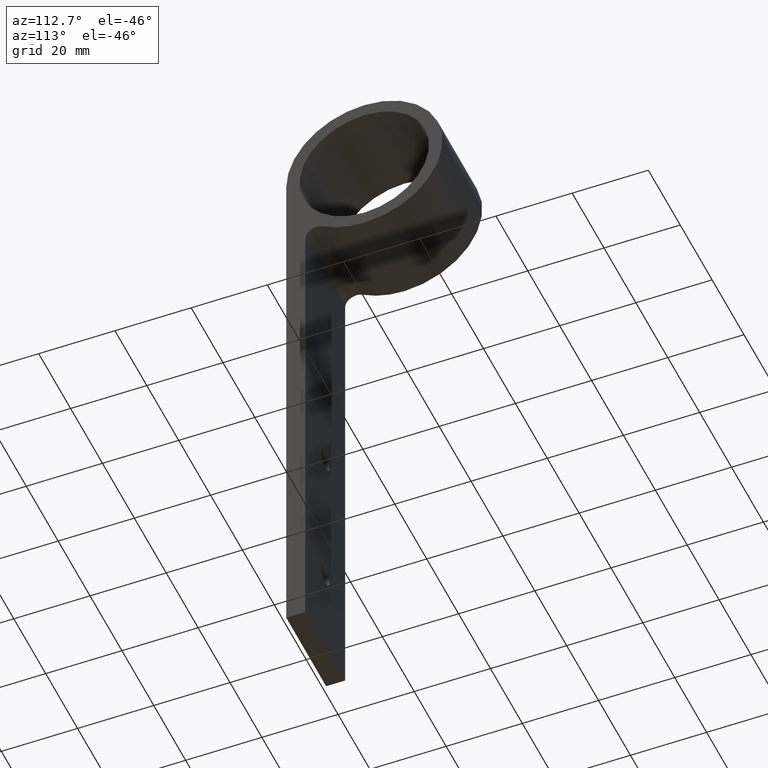
[diagram: clean part render]
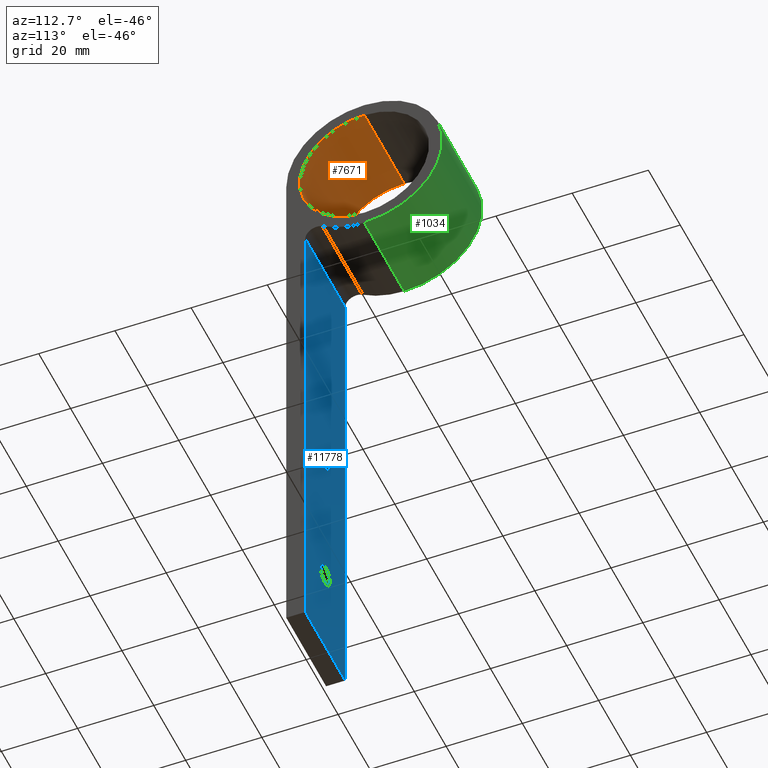
[diagram: same view with three faces highlighted in distinct colors, each labeled with its STEP entity id]
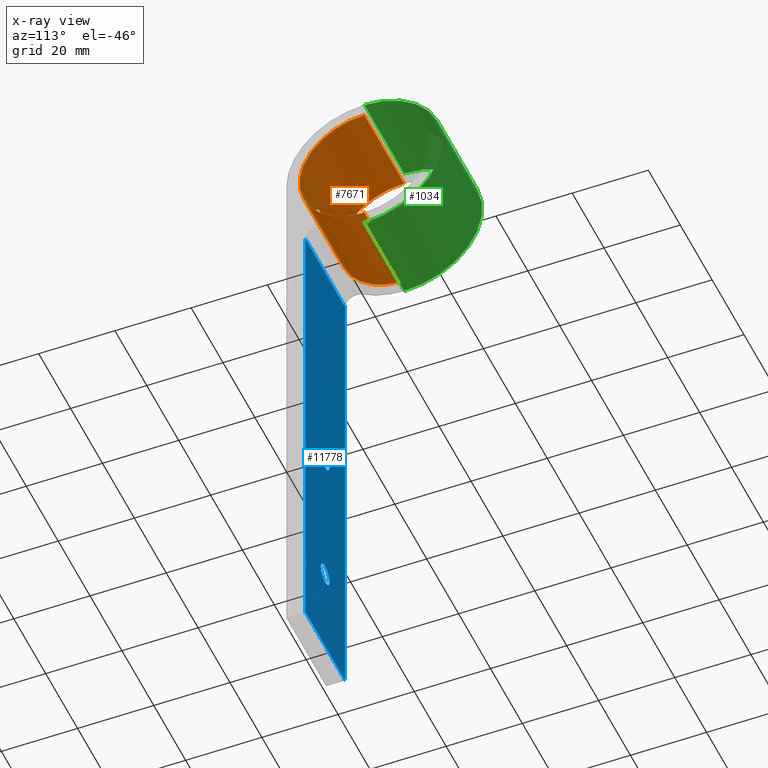
[diagram: x-ray of the same camera — body ghosted, the three highlighted faces saturated]
A machine part, auxiliary view with three faces highlighted in distinct colors.
The next image is the same camera in x-ray (body ghosted, the three faces saturated) — at least one of them is partly hidden behind the body in this view.
Their STEP definitions:

[orange] entity #7671 — the highlighted cylindrical surface (partial cylindrical patch) has radius 17 mm, axis along (-1, -0, -0).
#60 = EDGE_CURVE ( 'NONE', #8145, #12774, #2739, .T. ) ;
#227 = CARTESIAN_POINT ( 'NONE',  ( 1.292585439704656800, 3.581853561563883100, -1.677527179448687000 ) ) ;
#262 = CARTESIAN_POINT ( 'NONE',  ( -1.388464737928182500, 3.573436707370332600, -1.581422137892240400 ) ) ;
#386 = CARTESIAN_POINT ( 'NONE',  ( -1.835140735192840800, 3.531001461322652400, -1.056917894825852400 ) ) ;
#437 = DIRECTION ( 'NONE',  ( 1.000000000000000000, 0.0000000000000000000, 0.0000000000000000000 ) ) ;
#576 = CARTESIAN_POINT ( 'NONE',  ( -1.887636051577382700, 3.525005667795949400, 0.9304763180345871900 ) ) ;
#1111 = CARTESIAN_POINT ( 'NONE',  ( 2.086562036054864200, 3.501675275820900000, -0.2738667170391442800 ) ) ;
#1154 = CARTESIAN_POINT ( 'NONE',  ( 0.5506840071780398900, 3.623106845484088900, 2.044889796749440600 ) ) ;
#1166 = VERTEX_POINT ( 'NONE', #11349 ) ;
#1236 = CARTESIAN_POINT ( 'NONE',  ( 1.671126338246743400, 3.547804512478232000, -1.279124811796311000 ) ) ;
#1592 = CARTESIAN_POINT ( 'NONE',  ( 12.50000000000000000, 20.50000000000000000, 0.0000000000000000000 ) ) ;
#1599 = DIRECTION ( 'NONE',  ( 0.0000000000000000000, 0.0000000000000000000, -1.000000000000000000 ) ) ;
#1612 = CARTESIAN_POINT ( 'NONE',  ( -1.281165112788328600, 3.582005868734934300, 1.669525685018801600 ) ) ;
#1862 = EDGE_LOOP ( 'NONE', ( #3165, #4734 ) ) ;
#1906 = CARTESIAN_POINT ( 'NONE',  ( 2.571758226451988600E-016, 3.630204506278088800, 2.099999999999998300 ) ) ;
#1988 = EDGE_CURVE ( 'NONE', #12774, #1166, #10235, .T. ) ;
#2127 = CARTESIAN_POINT ( 'NONE',  ( 1.056153587996465900, 3.599061266467410200, 1.835583491746922300 ) ) ;
#2449 = B_SPLINE_CURVE_WITH_KNOTS ( 'NONE', 3,
 ( #3033, #5935, #1154, #2127, #3171, #9188, #12147, #12103, #4208, #10193, #11090, #7232, #8191, #5145, #1111, #6079, #10113, #9101, #4123, #1236, #6177, #227, #8231, #12184, #11193, #3219 ),
 .UNSPECIFIED., .F., .F.,
 ( 4, 2, 2, 2, 2, 2, 2, 2, 2, 2, 2, 2, 4 ),
 ( 0.006571828475875620200, 0.007393110482867787000, 0.008214392489859952100, 0.008625033493356035500, 0.009035674496852119000, 0.009446315500348200600, 0.009856956503844284100, 0.01026759750734036700, 0.01067823851083644900, 0.01108887951433253400, 0.01149952051782861600, 0.01232080252482078300, 0.01314208453181295000 ),
 .UNSPECIFIED. ) ;
#2521 = CARTESIAN_POINT ( 'NONE',  ( -1.669911747788980200, 3.547923696449819500, 1.280662982450457800 ) ) ;
#2563 = CARTESIAN_POINT ( 'NONE',  ( 12.50000000000000000, 20.50000000000000400, -17.00000000000000000 ) ) ;
#2575 = AXIS2_PLACEMENT_3D ( 'NONE', #9454, #437, #9300 ) ;
#2609 = CARTESIAN_POINT ( 'NONE',  ( -0.2764157468130021800, 3.628477410110408900, 2.086254837854884900 ) ) ;
#2739 = LINE ( 'NONE', #4938, #4584 ) ;
#3033 = CARTESIAN_POINT ( 'NONE',  ( 2.571758226451988600E-016, 3.630204506278088800, 2.099999999999998300 ) ) ;
#3165 = ORIENTED_EDGE ( 'NONE', *, *, #9048, .F. ) ;
#3171 = CARTESIAN_POINT ( 'NONE',  ( 1.290223062014691100, 3.582037801974925700, 1.679363138923043700 ) ) ;
#3219 = CARTESIAN_POINT ( 'NONE',  ( -1.288920661660106000E-016, 3.630204506278089700, -2.099999999999998300 ) ) ;
#3254 = VERTEX_POINT ( 'NONE', #1906 ) ;
#3323 = ORIENTED_EDGE ( 'NONE', *, *, #10654, .T. ) ;
#3462 = CARTESIAN_POINT ( 'NONE',  ( -1.992964028051135200, 3.512970585406910700, 0.6760550454896757700 ) ) ;
#3606 = EDGE_CURVE ( 'NONE', #8145, #6884, #4105, .T. ) ;
#3630 = CARTESIAN_POINT ( 'NONE',  ( -1.583035926240891300, 3.556373444854558300, 1.386792208159472800 ) ) ;
#3865 = DIRECTION ( 'NONE',  ( -1.000000000000000000, -0.0000000000000000000, -0.0000000000000000000 ) ) ;
#4095 = ORIENTED_EDGE ( 'NONE', *, *, #1988, .F. ) ;
#4105 = CIRCLE ( 'NONE', #7770, 17.00000000000000000 ) ;
#4123 = CARTESIAN_POINT ( 'NONE',  ( 1.823348185436688000, 3.532122489418227500, -1.050821068117524700 ) ) ;
#4208 = CARTESIAN_POINT ( 'NONE',  ( 1.886447012561549100, 3.525138299874243800, 0.9328776612798781500 ) ) ;
#4230 = FACE_BOUND ( 'NONE', #1862, .T. ) ;
#4244 = CARTESIAN_POINT ( 'NONE',  ( -1.052337786729713000, 3.597797215665412100, -1.822473903856179000 ) ) ;
#4284 = CARTESIAN_POINT ( 'NONE',  ( -0.2754415339899465900, 3.628490212755584500, -2.086356138743989500 ) ) ;
#4477 = CARTESIAN_POINT ( 'NONE',  ( -0.6767192885169987000, 3.617114506524287300, 1.992734033895099400 ) ) ;
#4514 = CARTESIAN_POINT ( 'NONE',  ( -2.086359296382373600, 3.501700522358104400, 0.2756364203450403200 ) ) ;
#4557 = CARTESIAN_POINT ( 'NONE',  ( -0.1371224895085250700, 3.630204506278091400, 2.099999999999999200 ) ) ;
#4584 = VECTOR ( 'NONE', #3865, 1000.000000000000000 ) ;
#4734 = ORIENTED_EDGE ( 'NONE', *, *, #11450, .F. ) ;
#4938 = CARTESIAN_POINT ( 'NONE',  ( 12.50000000000000000, 20.50000000000000000, 17.00000000000000000 ) ) ;
#5145 = CARTESIAN_POINT ( 'NONE',  ( 2.100099172365800500, 3.499987749299107200, -0.1373417007826688600 ) ) ;
#5545 = CARTESIAN_POINT ( 'NONE',  ( 12.50000000000000000, 20.50000000000000000, 0.0000000000000000000 ) ) ;
#5578 = DIRECTION ( 'NONE',  ( 0.0000000000000000000, 0.0000000000000000000, 1.000000000000000000 ) ) ;
#5793 = DIRECTION ( 'NONE',  ( -1.000000000000000000, -0.0000000000000000000, -0.0000000000000000000 ) ) ;
#5935 = CARTESIAN_POINT ( 'NONE',  ( 0.2741793613165029500, 3.630204506278091900, 2.099999999999998300 ) ) ;
#6079 = CARTESIAN_POINT ( 'NONE',  ( 2.033341558712305400, 3.508126054118702700, -0.5424630997778831000 ) ) ;
#6177 = CARTESIAN_POINT ( 'NONE',  ( 1.582617475947107000, 3.556405236091980900, -1.387097892727182600 ) ) ;
#6253 = CARTESIAN_POINT ( 'NONE',  ( -0.6774923513383321900, 3.617083508942036100, -1.992473001880804300 ) ) ;
#6293 = CARTESIAN_POINT ( 'NONE',  ( -1.288920661660106000E-016, 3.630204506278089700, -2.099999999999998300 ) ) ;
#6342 = CARTESIAN_POINT ( 'NONE',  ( -0.5440391609568068200, 3.621968329479530600, -2.032921879381221200 ) ) ;
#6420 = CARTESIAN_POINT ( 'NONE',  ( -1.280528881285621300, 3.582056911042781300, -1.670051415917895400 ) ) ;
#6622 = CARTESIAN_POINT ( 'NONE',  ( -1.387120695110205300, 3.573553771707912700, 1.582748100481615500 ) ) ;
#6884 = VERTEX_POINT ( 'NONE', #2563 ) ;
#7232 = CARTESIAN_POINT ( 'NONE',  ( 2.086161878843087800, 3.501724677108447800, 0.2768808507634298300 ) ) ;
#7392 = CARTESIAN_POINT ( 'NONE',  ( -1.678728219155094100, 3.547980335148853900, -1.291043296313081100 ) ) ;
#7550 = CARTESIAN_POINT ( 'NONE',  ( -1.821904488581840100, 3.532277061388037400, 1.053264902343135100 ) ) ;
#7584 = DIRECTION ( 'NONE',  ( 1.000000000000000000, 0.0000000000000000000, 0.0000000000000000000 ) ) ;
#7671 = ADVANCED_FACE ( 'NONE', ( #4230, #8578 ), #12188, .F. ) ;
#7770 = AXIS2_PLACEMENT_3D ( 'NONE', #5545, #7584, #1599 ) ;
#7815 = B_SPLINE_CURVE_WITH_KNOTS ( 'NONE', 3,
 ( #6293, #12305, #4284, #6342, #6253, #11356, #4244, #6420, #262, #7392, #386, #9512, #9600, #12467, #4514, #12430, #3462, #576, #7550, #2521, #3630, #6622, #1612, #10596, #11523, #4477, #10563, #2609, #4557, #12589 ),
 .UNSPECIFIED., .F., .F.,
 ( 4, 2, 2, 2, 2, 2, 2, 2, 2, 2, 2, 2, 2, 2, 4 ),
 ( 1.425211723115268800E-019, 0.0004107392797422264300, 0.0008214785594844526300, 0.001232217839226679100, 0.001642957118968905300, 0.002464435678453357800, 0.003285914237937810100, 0.003696653517680036300, 0.004107392797422262400, 0.004518132077164488600, 0.004928871356906715600, 0.005339610636648941700, 0.005750349916391167900, 0.006161089196133394000, 0.006571828475875620200 ),
 .UNSPECIFIED. ) ;
#8145 = VERTEX_POINT ( 'NONE', #9017 ) ;
#8191 = CARTESIAN_POINT ( 'NONE',  ( 2.099899744605787900, 3.500012384486737000, 0.1403578966426291800 ) ) ;
#8231 = CARTESIAN_POINT ( 'NONE',  ( 1.058654519263458400, 3.598901389102847800, -1.834129459362758200 ) ) ;
#8381 = ORIENTED_EDGE ( 'NONE', *, *, #60, .F. ) ;
#8393 = EDGE_LOOP ( 'NONE', ( #8769, #3323, #4095, #8381 ) ) ;
#8578 = FACE_OUTER_BOUND ( 'NONE', #8393, .T. ) ;
#8769 = ORIENTED_EDGE ( 'NONE', *, *, #3606, .T. ) ;
#9017 = CARTESIAN_POINT ( 'NONE',  ( 12.50000000000000000, 20.50000000000000000, 17.00000000000000000 ) ) ;
#9048 = EDGE_CURVE ( 'NONE', #10196, #3254, #7815, .T. ) ;
#9101 = CARTESIAN_POINT ( 'NONE',  ( 1.887759289928912600, 3.524991825669267200, -0.9302137007967088400 ) ) ;
#9188 = CARTESIAN_POINT ( 'NONE',  ( 1.580769184118613100, 3.556578752817606900, 1.389209419804291200 ) ) ;
#9300 = DIRECTION ( 'NONE',  ( 0.0000000000000000000, 0.0000000000000000000, -1.000000000000000000 ) ) ;
#9454 = CARTESIAN_POINT ( 'NONE',  ( -12.50000000000000000, 20.50000000000000000, 0.0000000000000000000 ) ) ;
#9467 = AXIS2_PLACEMENT_3D ( 'NONE', #1592, #10659, #5578 ) ;
#9512 = CARTESIAN_POINT ( 'NONE',  ( -2.044647976664420800, 3.507067491567332300, -0.5515719408103705300 ) ) ;
#9600 = CARTESIAN_POINT ( 'NONE',  ( -2.099899160140454000, 3.500012456687702700, -0.2750024460956742600 ) ) ;
#9805 = LINE ( 'NONE', #10778, #12144 ) ;
#9903 = CARTESIAN_POINT ( 'NONE',  ( -1.288920661660106000E-016, 3.630204506278089700, -2.099999999999998300 ) ) ;
#10113 = CARTESIAN_POINT ( 'NONE',  ( 1.992997497906197500, 3.512966521239129700, -0.6759390795052893100 ) ) ;
#10193 = CARTESIAN_POINT ( 'NONE',  ( 1.992068355104039900, 3.513076095460931000, 0.6786801387328876800 ) ) ;
#10196 = VERTEX_POINT ( 'NONE', #9903 ) ;
#10235 = CIRCLE ( 'NONE', #2575, 17.00000000000000000 ) ;
#10563 = CARTESIAN_POINT ( 'NONE',  ( -0.5457997217820446100, 3.621914617695349800, 2.032478186171192900 ) ) ;
#10596 = CARTESIAN_POINT ( 'NONE',  ( -1.053830932126237100, 3.597701309798144300, 1.821576357350241500 ) ) ;
#10654 = EDGE_CURVE ( 'NONE', #6884, #1166, #9805, .T. ) ;
#10659 = DIRECTION ( 'NONE',  ( -1.000000000000000000, -0.0000000000000000000, -0.0000000000000000000 ) ) ;
#10778 = CARTESIAN_POINT ( 'NONE',  ( 12.50000000000000000, 20.50000000000000400, -17.00000000000000000 ) ) ;
#11090 = CARTESIAN_POINT ( 'NONE',  ( 2.032571799794656600, 3.508218436861709800, 0.5453313386713727300 ) ) ;
#11193 = CARTESIAN_POINT ( 'NONE',  ( 0.2777231473538315800, 3.630204506278090500, -2.099999999999999200 ) ) ;
#11349 = CARTESIAN_POINT ( 'NONE',  ( -12.50000000000000000, 20.50000000000000400, -17.00000000000000000 ) ) ;
#11356 = CARTESIAN_POINT ( 'NONE',  ( -0.9317625166014631400, 3.604969525175207000, -1.886998453100149400 ) ) ;
#11450 = EDGE_CURVE ( 'NONE', #3254, #10196, #2449, .T. ) ;
#11523 = CARTESIAN_POINT ( 'NONE',  ( -0.9309870661877792700, 3.605012266717367600, 1.887379402209809800 ) ) ;
#11783 = CARTESIAN_POINT ( 'NONE',  ( -12.50000000000000000, 20.50000000000000000, 17.00000000000000000 ) ) ;
#12103 = CARTESIAN_POINT ( 'NONE',  ( 1.821872942515406500, 3.532281403634998100, 1.053364151147621300 ) ) ;
#12144 = VECTOR ( 'NONE', #5793, 1000.000000000000000 ) ;
#12147 = CARTESIAN_POINT ( 'NONE',  ( 1.669450014099930200, 3.547970130502387900, 1.281301566382573300 ) ) ;
#12184 = CARTESIAN_POINT ( 'NONE',  ( 0.5536380703599101900, 3.623006785061963600, -2.044080515025624900 ) ) ;
#12188 = CYLINDRICAL_SURFACE ( 'NONE', #9467, 17.00000000000000000 ) ;
#12305 = CARTESIAN_POINT ( 'NONE',  ( -0.1388948065837086500, 3.630204506278089700, -2.099999999999998300 ) ) ;
#12430 = CARTESIAN_POINT ( 'NONE',  ( -2.032672658805467300, 3.508206446762163200, 0.5450801885654020800 ) ) ;
#12467 = CARTESIAN_POINT ( 'NONE',  ( -2.100050207561070500, 3.499993797889925600, 0.1363445369349200500 ) ) ;
#12589 = CARTESIAN_POINT ( 'NONE',  ( 2.571758226451988600E-016, 3.630204506278088800, 2.099999999999998300 ) ) ;
#12774 = VERTEX_POINT ( 'NONE', #11783 ) ;

[blue] entity #11778 — the highlighted planar face has unit normal (0, -1, -0).
#149 = DIRECTION ( 'NONE',  ( 0.0000000000000000000, -1.000000000000000000, -1.333585990310819800E-016 ) ) ;
#151 = VERTEX_POINT ( 'NONE', #3268 ) ;
#170 = CIRCLE ( 'NONE', #6510, 2.750000000000002700 ) ;
#177 = DIRECTION ( 'NONE',  ( 1.000000000000000000, 0.0000000000000000000, 0.0000000000000000000 ) ) ;
#354 = EDGE_CURVE ( 'NONE', #10653, #2700, #6976, .T. ) ;
#371 = FACE_BOUND ( 'NONE', #11146, .T. ) ;
#725 = EDGE_CURVE ( 'NONE', #7938, #11404, #9448, .T. ) ;
#856 = EDGE_CURVE ( 'NONE', #7938, #3028, #9150, .T. ) ;
#925 = ORIENTED_EDGE ( 'NONE', *, *, #7979, .T. ) ;
#971 = CARTESIAN_POINT ( 'NONE',  ( 0.0000000000000000000, 4.999999999999996400, -127.7500000000000000 ) ) ;
#1430 = AXIS2_PLACEMENT_3D ( 'NONE', #4621, #4659, #8602 ) ;
#1637 = VECTOR ( 'NONE', #10753, 1000.000000000000000 ) ;
#2040 = DIRECTION ( 'NONE',  ( 0.0000000000000000000, 0.0000000000000000000, -1.000000000000000000 ) ) ;
#2307 = DIRECTION ( 'NONE',  ( -1.000000000000000000, -0.0000000000000000000, -0.0000000000000000000 ) ) ;
#2700 = VERTEX_POINT ( 'NONE', #5416 ) ;
#2812 = CARTESIAN_POINT ( 'NONE',  ( -4.561809326823892200E-015, 4.999999999999991100, -82.24999999999998600 ) ) ;
#2813 = CARTESIAN_POINT ( 'NONE',  ( -12.50000000000000000, 5.000000000000000000, -150.0000000000000000 ) ) ;
#2922 = DIRECTION ( 'NONE',  ( 0.0000000000000000000, 1.333585990310819800E-016, -1.000000000000000000 ) ) ;
#3028 = VERTEX_POINT ( 'NONE', #11123 ) ;
#3222 = AXIS2_PLACEMENT_3D ( 'NONE', #12385, #12502, #4476 ) ;
#3268 = CARTESIAN_POINT ( 'NONE',  ( -12.50000000000000000, 4.999999999999983100, -19.89974874213237800 ) ) ;
#3552 = ORIENTED_EDGE ( 'NONE', *, *, #856, .T. ) ;
#4167 = CARTESIAN_POINT ( 'NONE',  ( 12.50000000000000000, 4.999999999999983100, -19.89974874213238500 ) ) ;
#4476 = DIRECTION ( 'NONE',  ( 0.0000000000000000000, 0.0000000000000000000, -1.000000000000000000 ) ) ;
#4621 = CARTESIAN_POINT ( 'NONE',  ( 0.0000000000000000000, 4.999999999999996400, -125.0000000000000000 ) ) ;
#4659 = DIRECTION ( 'NONE',  ( 0.0000000000000000000, -1.000000000000000000, -1.333585990310819800E-016 ) ) ;
#4782 = CARTESIAN_POINT ( 'NONE',  ( 0.0000000000000000000, 4.999999999999996400, -125.0000000000000000 ) ) ;
#4832 = VERTEX_POINT ( 'NONE', #2812 ) ;
#4963 = EDGE_CURVE ( 'NONE', #8496, #4832, #170, .T. ) ;
#4986 = CARTESIAN_POINT ( 'NONE',  ( 12.50000000000000000, 5.000000000000000000, -150.0000000000000000 ) ) ;
#5416 = CARTESIAN_POINT ( 'NONE',  ( 3.367778697655213600E-016, 4.999999999999996400, -122.2500000000000000 ) ) ;
#6052 = CARTESIAN_POINT ( 'NONE',  ( 12.50000000000000000, 5.000000000000000000, -150.0000000000000000 ) ) ;
#6063 = DIRECTION ( 'NONE',  ( 0.0000000000000000000, -1.000000000000000000, -1.333585990310819800E-016 ) ) ;
#6142 = CARTESIAN_POINT ( 'NONE',  ( -4.898587196589413800E-015, 4.999999999999991100, -84.99999999999998600 ) ) ;
#6510 = AXIS2_PLACEMENT_3D ( 'NONE', #6142, #149, #2040 ) ;
#6716 = DIRECTION ( 'NONE',  ( 0.0000000000000000000, 0.0000000000000000000, -1.000000000000000000 ) ) ;
#6968 = FACE_BOUND ( 'NONE', #10455, .T. ) ;
#6976 = CIRCLE ( 'NONE', #10286, 2.750000000000002700 ) ;
#7030 = LINE ( 'NONE', #2813, #10602 ) ;
#7938 = VERTEX_POINT ( 'NONE', #4986 ) ;
#7979 = EDGE_CURVE ( 'NONE', #4832, #8496, #9378, .T. ) ;
#8306 = LINE ( 'NONE', #4167, #10451 ) ;
#8358 = FACE_OUTER_BOUND ( 'NONE', #12505, .T. ) ;
#8496 = VERTEX_POINT ( 'NONE', #10907 ) ;
#8602 = DIRECTION ( 'NONE',  ( 0.0000000000000000000, 0.0000000000000000000, -1.000000000000000000 ) ) ;
#8632 = EDGE_CURVE ( 'NONE', #3028, #151, #7030, .T. ) ;
#8866 = CARTESIAN_POINT ( 'NONE',  ( 12.50000000000000000, 5.000000000000000000, -150.0000000000000000 ) ) ;
#8873 = DIRECTION ( 'NONE',  ( 0.0000000000000000000, -1.000000000000000000, -1.333585990310819800E-016 ) ) ;
#8901 = AXIS2_PLACEMENT_3D ( 'NONE', #8866, #6063, #2922 ) ;
#9150 = LINE ( 'NONE', #6052, #9318 ) ;
#9318 = VECTOR ( 'NONE', #2307, 1000.000000000000000 ) ;
#9378 = CIRCLE ( 'NONE', #3222, 2.750000000000002700 ) ;
#9448 = LINE ( 'NONE', #11865, #1637 ) ;
#9573 = EDGE_CURVE ( 'NONE', #2700, #10653, #12936, .T. ) ;
#10286 = AXIS2_PLACEMENT_3D ( 'NONE', #4782, #8873, #6716 ) ;
#10451 = VECTOR ( 'NONE', #177, 1000.000000000000000 ) ;
#10455 = EDGE_LOOP ( 'NONE', ( #12868, #925 ) ) ;
#10594 = ORIENTED_EDGE ( 'NONE', *, *, #8632, .T. ) ;
#10602 = VECTOR ( 'NONE', #10799, 1000.000000000000000 ) ;
#10653 = VERTEX_POINT ( 'NONE', #971 ) ;
#10753 = DIRECTION ( 'NONE',  ( 0.0000000000000000000, -1.333585990310819800E-016, 1.000000000000000000 ) ) ;
#10799 = DIRECTION ( 'NONE',  ( 0.0000000000000000000, -1.333585990310819800E-016, 1.000000000000000000 ) ) ;
#10907 = CARTESIAN_POINT ( 'NONE',  ( -4.898587196589413800E-015, 4.999999999999991100, -87.75000000000000000 ) ) ;
#11123 = CARTESIAN_POINT ( 'NONE',  ( -12.50000000000000000, 5.000000000000000000, -150.0000000000000000 ) ) ;
#11146 = EDGE_LOOP ( 'NONE', ( #11924, #11791 ) ) ;
#11404 = VERTEX_POINT ( 'NONE', #12884 ) ;
#11417 = ORIENTED_EDGE ( 'NONE', *, *, #11494, .T. ) ;
#11494 = EDGE_CURVE ( 'NONE', #151, #11404, #8306, .T. ) ;
#11778 = ADVANCED_FACE ( 'NONE', ( #371, #6968, #8358 ), #12914, .F. ) ;
#11791 = ORIENTED_EDGE ( 'NONE', *, *, #9573, .T. ) ;
#11865 = CARTESIAN_POINT ( 'NONE',  ( 12.50000000000000000, 5.000000000000000000, -150.0000000000000000 ) ) ;
#11924 = ORIENTED_EDGE ( 'NONE', *, *, #354, .T. ) ;
#12219 = ORIENTED_EDGE ( 'NONE', *, *, #725, .F. ) ;
#12385 = CARTESIAN_POINT ( 'NONE',  ( -4.898587196589413800E-015, 4.999999999999991100, -84.99999999999998600 ) ) ;
#12502 = DIRECTION ( 'NONE',  ( 0.0000000000000000000, -1.000000000000000000, -1.333585990310819800E-016 ) ) ;
#12505 = EDGE_LOOP ( 'NONE', ( #10594, #11417, #12219, #3552 ) ) ;
#12868 = ORIENTED_EDGE ( 'NONE', *, *, #4963, .T. ) ;
#12884 = CARTESIAN_POINT ( 'NONE',  ( 12.50000000000000000, 4.999999999999983100, -19.89974874213237800 ) ) ;
#12914 = PLANE ( 'NONE',  #8901 ) ;
#12936 = CIRCLE ( 'NONE', #1430, 2.750000000000002700 ) ;

[green] entity #1034 — the highlighted cylindrical surface (partial cylindrical patch) has radius 20.5 mm, axis along (-1, -0, -0).
#65 = DIRECTION ( 'NONE',  ( 0.0000000000000000000, 0.0000000000000000000, -1.000000000000000000 ) ) ;
#661 = ORIENTED_EDGE ( 'NONE', *, *, #5329, .T. ) ;
#1034 = ADVANCED_FACE ( 'NONE', ( #3380 ), #6336, .T. ) ;
#2197 = AXIS2_PLACEMENT_3D ( 'NONE', #6047, #6135, #65 ) ;
#2376 = ORIENTED_EDGE ( 'NONE', *, *, #8717, .F. ) ;
#2533 = VERTEX_POINT ( 'NONE', #9651 ) ;
#2810 = CIRCLE ( 'NONE', #8882, 20.50000000000000000 ) ;
#2962 = LINE ( 'NONE', #11768, #5731 ) ;
#3314 = VECTOR ( 'NONE', #5605, 1000.000000000000000 ) ;
#3380 = FACE_OUTER_BOUND ( 'NONE', #6947, .T. ) ;
#3766 = CARTESIAN_POINT ( 'NONE',  ( 12.50000000000000000, 20.50000000000000000, 0.0000000000000000000 ) ) ;
#3777 = DIRECTION ( 'NONE',  ( -1.000000000000000000, -0.0000000000000000000, -0.0000000000000000000 ) ) ;
#3802 = ORIENTED_EDGE ( 'NONE', *, *, #7538, .F. ) ;
#4090 = CARTESIAN_POINT ( 'NONE',  ( 12.50000000000000000, 20.50000000000000000, 20.50000000000000000 ) ) ;
#4660 = LINE ( 'NONE', #11611, #3314 ) ;
#4907 = DIRECTION ( 'NONE',  ( -1.000000000000000000, -0.0000000000000000000, -0.0000000000000000000 ) ) ;
#5329 = EDGE_CURVE ( 'NONE', #2533, #10036, #4660, .T. ) ;
#5605 = DIRECTION ( 'NONE',  ( -1.000000000000000000, -0.0000000000000000000, -0.0000000000000000000 ) ) ;
#5672 = EDGE_CURVE ( 'NONE', #10036, #9362, #6714, .T. ) ;
#5731 = VECTOR ( 'NONE', #4907, 1000.000000000000000 ) ;
#6047 = CARTESIAN_POINT ( 'NONE',  ( -12.50000000000000000, 20.50000000000000000, 0.0000000000000000000 ) ) ;
#6135 = DIRECTION ( 'NONE',  ( 1.000000000000000000, 0.0000000000000000000, 0.0000000000000000000 ) ) ;
#6336 = CYLINDRICAL_SURFACE ( 'NONE', #12673, 20.50000000000000000 ) ;
#6636 = DIRECTION ( 'NONE',  ( 0.0000000000000000000, 0.0000000000000000000, -1.000000000000000000 ) ) ;
#6714 = CIRCLE ( 'NONE', #2197, 20.50000000000000000 ) ;
#6784 = DIRECTION ( 'NONE',  ( 0.0000000000000000000, 0.0000000000000000000, 1.000000000000000000 ) ) ;
#6947 = EDGE_LOOP ( 'NONE', ( #3802, #661, #10777, #2376 ) ) ;
#7538 = EDGE_CURVE ( 'NONE', #2533, #10366, #2810, .T. ) ;
#8717 = EDGE_CURVE ( 'NONE', #10366, #9362, #2962, .T. ) ;
#8882 = AXIS2_PLACEMENT_3D ( 'NONE', #3766, #11571, #6636 ) ;
#9362 = VERTEX_POINT ( 'NONE', #12911 ) ;
#9651 = CARTESIAN_POINT ( 'NONE',  ( 12.50000000000000000, 20.50000000000000400, -20.50000000000000000 ) ) ;
#9712 = CARTESIAN_POINT ( 'NONE',  ( 12.50000000000000000, 20.50000000000000000, 0.0000000000000000000 ) ) ;
#10036 = VERTEX_POINT ( 'NONE', #10706 ) ;
#10366 = VERTEX_POINT ( 'NONE', #4090 ) ;
#10706 = CARTESIAN_POINT ( 'NONE',  ( -12.50000000000000000, 20.50000000000000400, -20.50000000000000000 ) ) ;
#10777 = ORIENTED_EDGE ( 'NONE', *, *, #5672, .T. ) ;
#11571 = DIRECTION ( 'NONE',  ( 1.000000000000000000, 0.0000000000000000000, 0.0000000000000000000 ) ) ;
#11611 = CARTESIAN_POINT ( 'NONE',  ( 12.50000000000000000, 20.50000000000000400, -20.50000000000000000 ) ) ;
#11768 = CARTESIAN_POINT ( 'NONE',  ( 12.50000000000000000, 20.50000000000000000, 20.50000000000000000 ) ) ;
#12673 = AXIS2_PLACEMENT_3D ( 'NONE', #9712, #3777, #6784 ) ;
#12911 = CARTESIAN_POINT ( 'NONE',  ( -12.50000000000000000, 20.50000000000000000, 20.50000000000000000 ) ) ;